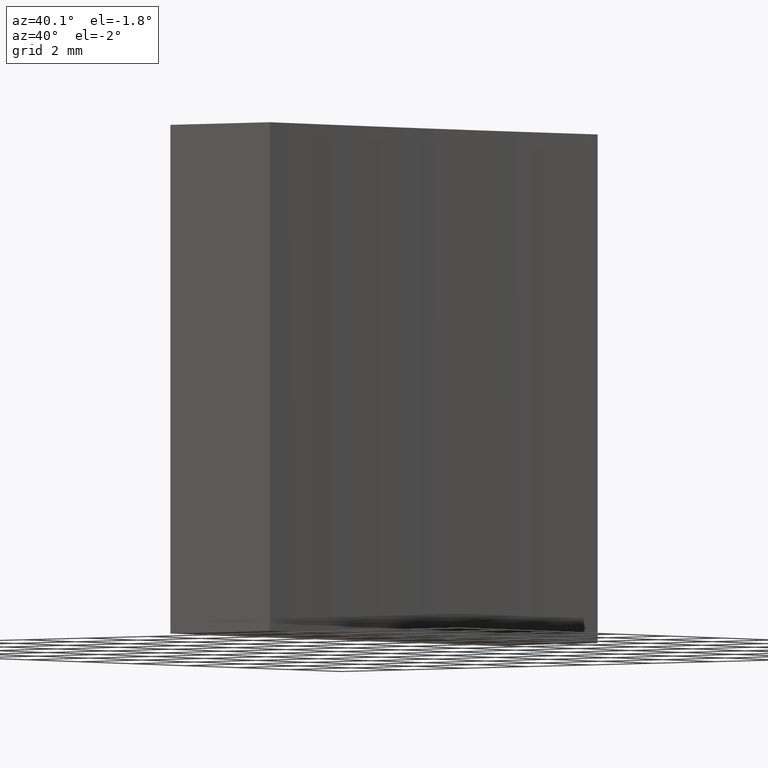
[diagram: clean part render]
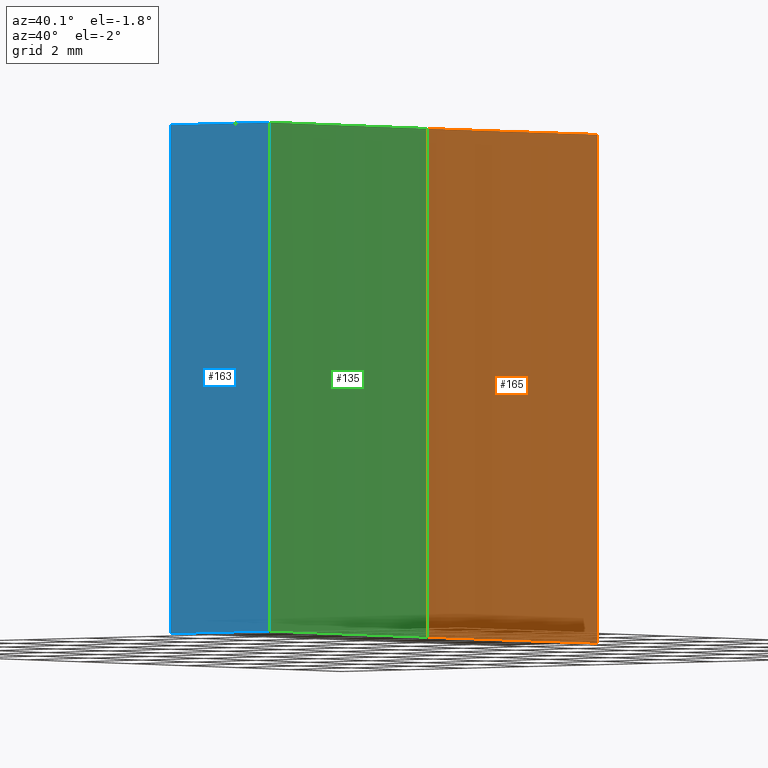
[diagram: same view with three faces highlighted in distinct colors, each labeled with its STEP entity id]
A machine part, auxiliary view with three faces highlighted in distinct colors.
Their STEP definitions:

[orange] entity #165 — the highlighted cylindrical surface (partial cylindrical patch) has radius 100 mm, axis along (-0, -0, -1).
#4 = EDGE_CURVE ( 'NONE', #41, #110, #21, .T. ) ;
#7 = CARTESIAN_POINT ( 'NONE',  ( 145.5490714239444400, 39.67896463388353800, 12.50000000000000000 ) ) ;
#15 = AXIS2_PLACEMENT_3D ( 'NONE', #78, #80, #153 ) ;
#20 = EDGE_CURVE ( 'NONE', #46, #110, #55, .T. ) ;
#21 = CIRCLE ( 'NONE', #15, 100.0000000000000000 ) ;
#22 = FACE_OUTER_BOUND ( 'NONE', #106, .T. ) ;
#26 = ORIENTED_EDGE ( 'NONE', *, *, #36, .F. ) ;
#36 = EDGE_CURVE ( 'NONE', #99, #46, #117, .T. ) ;
#41 = VERTEX_POINT ( 'NONE', #122 ) ;
#42 = DIRECTION ( 'NONE',  ( -0.0000000000000000000, -0.0000000000000000000, -1.000000000000000000 ) ) ;
#44 = EDGE_CURVE ( 'NONE', #99, #41, #198, .T. ) ;
#45 = DIRECTION ( 'NONE',  ( -0.0000000000000000000, -0.0000000000000000000, -1.000000000000000000 ) ) ;
#46 = VERTEX_POINT ( 'NONE', #61 ) ;
#47 = DIRECTION ( 'NONE',  ( -1.000000000000000000, 0.0000000000000000000, 0.0000000000000000000 ) ) ;
#55 = LINE ( 'NONE', #7, #238 ) ;
#56 = AXIS2_PLACEMENT_3D ( 'NONE', #203, #42, #223 ) ;
#58 = ORIENTED_EDGE ( 'NONE', *, *, #20, .F. ) ;
#61 = CARTESIAN_POINT ( 'NONE',  ( 145.5490714239444400, 39.67896463388353800, 12.50000000000000000 ) ) ;
#68 = DIRECTION ( 'NONE',  ( -0.0000000000000000000, -0.0000000000000000000, -1.000000000000000000 ) ) ;
#78 = CARTESIAN_POINT ( 'NONE',  ( 245.3535678156401300, 33.42896463388355200, 0.0000000000000000000 ) ) ;
#80 = DIRECTION ( 'NONE',  ( -0.0000000000000000000, -0.0000000000000000000, -1.000000000000000000 ) ) ;
#82 = CARTESIAN_POINT ( 'NONE',  ( 145.3535678156401300, 33.42896463388355200, 12.50000000000000000 ) ) ;
#87 = AXIS2_PLACEMENT_3D ( 'NONE', #171, #68, #47 ) ;
#90 = CARTESIAN_POINT ( 'NONE',  ( 145.3535678156401300, 33.42896463388355200, 12.50000000000000000 ) ) ;
#99 = VERTEX_POINT ( 'NONE', #90 ) ;
#106 = EDGE_LOOP ( 'NONE', ( #26, #190, #227, #58 ) ) ;
#110 = VERTEX_POINT ( 'NONE', #206 ) ;
#117 = CIRCLE ( 'NONE', #56, 100.0000000000000000 ) ;
#119 = DIRECTION ( 'NONE',  ( -0.0000000000000000000, -0.0000000000000000000, -1.000000000000000000 ) ) ;
#122 = CARTESIAN_POINT ( 'NONE',  ( 145.3535678156401300, 33.42896463388355200, 0.0000000000000000000 ) ) ;
#152 = VECTOR ( 'NONE', #119, 1000.000000000000000 ) ;
#153 = DIRECTION ( 'NONE',  ( 1.000000000000000000, 0.0000000000000000000, 0.0000000000000000000 ) ) ;
#165 = ADVANCED_FACE ( 'NONE', ( #22 ), #235, .F. ) ;
#171 = CARTESIAN_POINT ( 'NONE',  ( 245.3535678156401300, 33.42896463388355200, 12.50000000000000000 ) ) ;
#190 = ORIENTED_EDGE ( 'NONE', *, *, #44, .T. ) ;
#198 = LINE ( 'NONE', #82, #152 ) ;
#203 = CARTESIAN_POINT ( 'NONE',  ( 245.3535678156401300, 33.42896463388355200, 12.50000000000000000 ) ) ;
#206 = CARTESIAN_POINT ( 'NONE',  ( 145.5490714239444400, 39.67896463388353800, 0.0000000000000000000 ) ) ;
#223 = DIRECTION ( 'NONE',  ( 1.000000000000000000, 0.0000000000000000000, 0.0000000000000000000 ) ) ;
#227 = ORIENTED_EDGE ( 'NONE', *, *, #4, .T. ) ;
#235 = CYLINDRICAL_SURFACE ( 'NONE', #87, 100.0000000000000000 ) ;
#238 = VECTOR ( 'NONE', #45, 1000.000000000000000 ) ;

[blue] entity #163 — the highlighted planar face has unit normal (-0, 1, 0).
#1 = LINE ( 'NONE', #31, #214 ) ;
#9 = CARTESIAN_POINT ( 'NONE',  ( 142.3535678156410400, 27.17896463388353800, 12.50000000000000000 ) ) ;
#12 = PLANE ( 'NONE',  #62 ) ;
#24 = CARTESIAN_POINT ( 'NONE',  ( 145.5490714239444400, 27.17896463388360200, 0.0000000000000000000 ) ) ;
#28 = DIRECTION ( 'NONE',  ( -0.0000000000000000000, -0.0000000000000000000, -1.000000000000000000 ) ) ;
#31 = CARTESIAN_POINT ( 'NONE',  ( 145.5490714239444400, 27.17896463388357000, 0.0000000000000000000 ) ) ;
#33 = CARTESIAN_POINT ( 'NONE',  ( 142.3535678156410400, 27.17896463388353800, 0.0000000000000000000 ) ) ;
#52 = ORIENTED_EDGE ( 'NONE', *, *, #143, .F. ) ;
#59 = VERTEX_POINT ( 'NONE', #24 ) ;
#62 = AXIS2_PLACEMENT_3D ( 'NONE', #230, #107, #228 ) ;
#66 = CARTESIAN_POINT ( 'NONE',  ( 145.5490714239444400, 27.17896463388360200, 12.50000000000000000 ) ) ;
#75 = VERTEX_POINT ( 'NONE', #66 ) ;
#84 = VERTEX_POINT ( 'NONE', #191 ) ;
#85 = DIRECTION ( 'NONE',  ( -0.0000000000000000000, -0.0000000000000000000, -1.000000000000000000 ) ) ;
#94 = VECTOR ( 'NONE', #28, 1000.000000000000000 ) ;
#95 = ORIENTED_EDGE ( 'NONE', *, *, #233, .T. ) ;
#102 = CARTESIAN_POINT ( 'NONE',  ( 145.5490714239444400, 27.17896463388357000, 12.50000000000000000 ) ) ;
#107 = DIRECTION ( 'NONE',  ( -9.771549775893063200E-015, 1.000000000000000000, 0.0000000000000000000 ) ) ;
#114 = VECTOR ( 'NONE', #85, 1000.000000000000000 ) ;
#120 = ORIENTED_EDGE ( 'NONE', *, *, #167, .F. ) ;
#128 = DIRECTION ( 'NONE',  ( 1.000000000000000000, 9.771549775893063200E-015, -0.0000000000000000000 ) ) ;
#130 = EDGE_LOOP ( 'NONE', ( #166, #120, #52, #95 ) ) ;
#143 = EDGE_CURVE ( 'NONE', #84, #75, #161, .T. ) ;
#154 = VECTOR ( 'NONE', #128, 1000.000000000000000 ) ;
#161 = LINE ( 'NONE', #102, #154 ) ;
#163 = ADVANCED_FACE ( 'NONE', ( #180 ), #12, .F. ) ;
#166 = ORIENTED_EDGE ( 'NONE', *, *, #225, .T. ) ;
#167 = EDGE_CURVE ( 'NONE', #75, #59, #194, .T. ) ;
#173 = DIRECTION ( 'NONE',  ( 1.000000000000000000, 9.771549775893063200E-015, -0.0000000000000000000 ) ) ;
#180 = FACE_OUTER_BOUND ( 'NONE', #130, .T. ) ;
#182 = LINE ( 'NONE', #9, #94 ) ;
#188 = CARTESIAN_POINT ( 'NONE',  ( 145.5490714239444400, 27.17896463388360200, 12.50000000000000000 ) ) ;
#191 = CARTESIAN_POINT ( 'NONE',  ( 142.3535678156410400, 27.17896463388353800, 12.50000000000000000 ) ) ;
#194 = LINE ( 'NONE', #188, #114 ) ;
#214 = VECTOR ( 'NONE', #173, 1000.000000000000000 ) ;
#222 = VERTEX_POINT ( 'NONE', #33 ) ;
#225 = EDGE_CURVE ( 'NONE', #222, #59, #1, .T. ) ;
#228 = DIRECTION ( 'NONE',  ( -1.000000000000000000, -9.771549775893063200E-015, 0.0000000000000000000 ) ) ;
#230 = CARTESIAN_POINT ( 'NONE',  ( 145.5490714239444400, 27.17896463388357000, 12.50000000000000000 ) ) ;
#233 = EDGE_CURVE ( 'NONE', #84, #222, #182, .T. ) ;

[green] entity #135 — the highlighted cylindrical surface (partial cylindrical patch) has radius 100 mm, axis along (-0, -0, -1).
#2 = DIRECTION ( 'NONE',  ( -0.0000000000000000000, -0.0000000000000000000, -1.000000000000000000 ) ) ;
#3 = CARTESIAN_POINT ( 'NONE',  ( 245.3535678156401300, 33.42896463388355200, 12.50000000000000000 ) ) ;
#23 = EDGE_CURVE ( 'NONE', #75, #99, #202, .T. ) ;
#24 = CARTESIAN_POINT ( 'NONE',  ( 145.5490714239444400, 27.17896463388360200, 0.0000000000000000000 ) ) ;
#27 = AXIS2_PLACEMENT_3D ( 'NONE', #3, #184, #100 ) ;
#30 = CIRCLE ( 'NONE', #164, 100.0000000000000000 ) ;
#41 = VERTEX_POINT ( 'NONE', #122 ) ;
#44 = EDGE_CURVE ( 'NONE', #99, #41, #198, .T. ) ;
#48 = CARTESIAN_POINT ( 'NONE',  ( 245.3535678156401300, 33.42896463388355200, 12.50000000000000000 ) ) ;
#49 = EDGE_CURVE ( 'NONE', #59, #41, #30, .T. ) ;
#50 = DIRECTION ( 'NONE',  ( -0.0000000000000000000, -0.0000000000000000000, -1.000000000000000000 ) ) ;
#59 = VERTEX_POINT ( 'NONE', #24 ) ;
#66 = CARTESIAN_POINT ( 'NONE',  ( 145.5490714239444400, 27.17896463388360200, 12.50000000000000000 ) ) ;
#75 = VERTEX_POINT ( 'NONE', #66 ) ;
#82 = CARTESIAN_POINT ( 'NONE',  ( 145.3535678156401300, 33.42896463388355200, 12.50000000000000000 ) ) ;
#85 = DIRECTION ( 'NONE',  ( -0.0000000000000000000, -0.0000000000000000000, -1.000000000000000000 ) ) ;
#90 = CARTESIAN_POINT ( 'NONE',  ( 145.3535678156401300, 33.42896463388355200, 12.50000000000000000 ) ) ;
#97 = CYLINDRICAL_SURFACE ( 'NONE', #108, 100.0000000000000000 ) ;
#99 = VERTEX_POINT ( 'NONE', #90 ) ;
#100 = DIRECTION ( 'NONE',  ( 1.000000000000000000, 0.0000000000000000000, 0.0000000000000000000 ) ) ;
#101 = EDGE_LOOP ( 'NONE', ( #176, #141, #231, #186 ) ) ;
#108 = AXIS2_PLACEMENT_3D ( 'NONE', #48, #50, #189 ) ;
#114 = VECTOR ( 'NONE', #85, 1000.000000000000000 ) ;
#119 = DIRECTION ( 'NONE',  ( -0.0000000000000000000, -0.0000000000000000000, -1.000000000000000000 ) ) ;
#122 = CARTESIAN_POINT ( 'NONE',  ( 145.3535678156401300, 33.42896463388355200, 0.0000000000000000000 ) ) ;
#135 = ADVANCED_FACE ( 'NONE', ( #147 ), #97, .F. ) ;
#141 = ORIENTED_EDGE ( 'NONE', *, *, #23, .F. ) ;
#147 = FACE_OUTER_BOUND ( 'NONE', #101, .T. ) ;
#152 = VECTOR ( 'NONE', #119, 1000.000000000000000 ) ;
#164 = AXIS2_PLACEMENT_3D ( 'NONE', #170, #2, #209 ) ;
#167 = EDGE_CURVE ( 'NONE', #75, #59, #194, .T. ) ;
#170 = CARTESIAN_POINT ( 'NONE',  ( 245.3535678156401300, 33.42896463388355200, 0.0000000000000000000 ) ) ;
#176 = ORIENTED_EDGE ( 'NONE', *, *, #44, .F. ) ;
#184 = DIRECTION ( 'NONE',  ( -0.0000000000000000000, -0.0000000000000000000, -1.000000000000000000 ) ) ;
#186 = ORIENTED_EDGE ( 'NONE', *, *, #49, .T. ) ;
#188 = CARTESIAN_POINT ( 'NONE',  ( 145.5490714239444400, 27.17896463388360200, 12.50000000000000000 ) ) ;
#189 = DIRECTION ( 'NONE',  ( -1.000000000000000000, 0.0000000000000000000, 0.0000000000000000000 ) ) ;
#194 = LINE ( 'NONE', #188, #114 ) ;
#198 = LINE ( 'NONE', #82, #152 ) ;
#202 = CIRCLE ( 'NONE', #27, 100.0000000000000000 ) ;
#209 = DIRECTION ( 'NONE',  ( 1.000000000000000000, 0.0000000000000000000, 0.0000000000000000000 ) ) ;
#231 = ORIENTED_EDGE ( 'NONE', *, *, #167, .T. ) ;